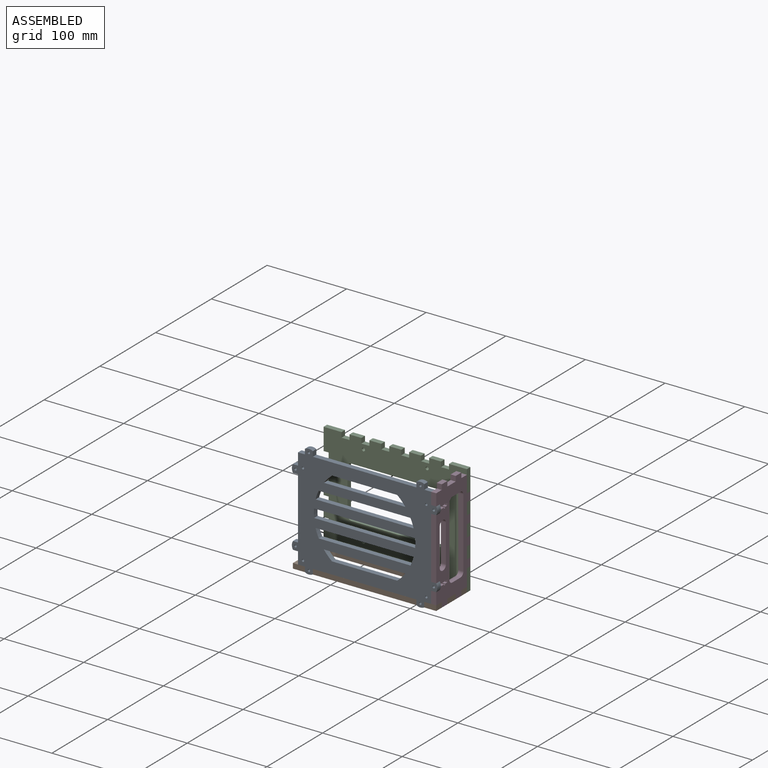
[diagram: assembled view]
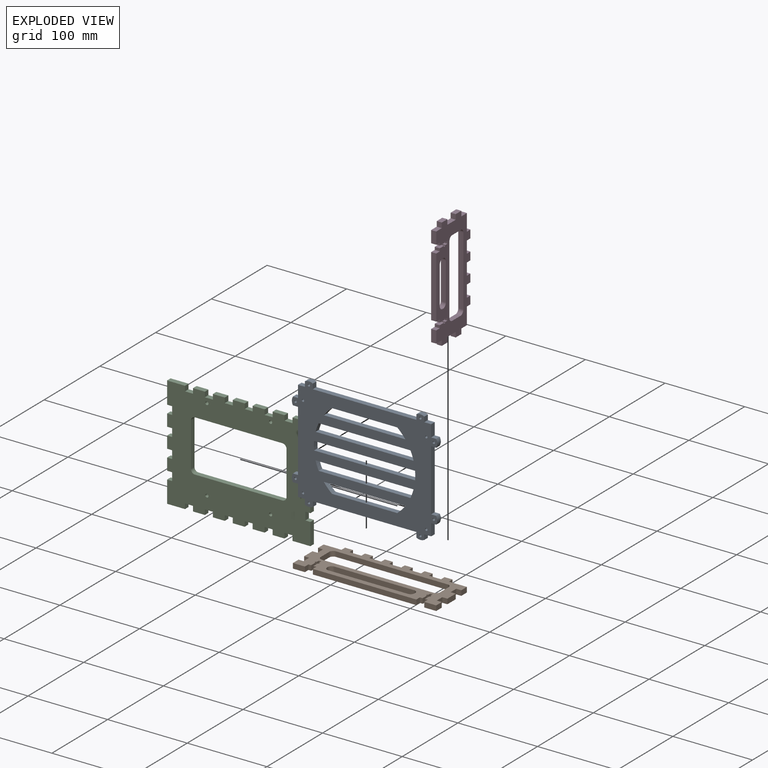
[diagram: exploded view]
GUIDED TOUR — MATED ASSEMBLY (Onshape document e93a26d0c6cd02507e0e48b9, AutoMate assembly e93a26d0c6cd02507e0e48b9_cac56c39afc5d2b4a90f5d49_2659cc8e5002bebd67dfdee4_default)

This assembly has 4 components, labeled P0..P3 below (a component is one placed occurrence of a part; the same part can appear more than once), held together by 9 mates. A mate is a constraint between two components; its type names the relative motion it leaves free:
  PLANAR — leaves sliding in the plane through the listed point (normal = the listed direction) and rotation about that normal free.
Axis/direction vectors are unit vectors and 'through' points are millimeter coordinates, both in the assembly's world frame.

MATES
  1. PLANAR "Planar 2": P1 <-> P2, direction (0.000, 1.000, 0.000) through (20.25, 56.73, -75.75) mm
  2. PLANAR "Planar 5": P3 <-> P1, direction (0.000, 0.000, -1.000) through (28.33, 6.73, -72.58) mm
  3. PLANAR "Planar 8": P3 <-> P0, direction (0.000, 0.000, -1.000) through (28.33, 4.90, 39.72) mm
  4. PLANAR "Planar 3": P1 <-> P2, direction (1.000, 0.000, 0.000) through (9.00, 59.90, -75.75) mm
  5. PLANAR "Planar 9": P0 <-> P1, direction (1.000, 0.000, 0.000) through (16.50, 4.90, -75.75) mm
  6. PLANAR "Planar 7": P0 <-> P3, direction (0.000, 1.000, 0.000) through (25.15, 8.08, 29.72) mm
  7. PLANAR "Planar 1": P2 <-> P1, direction (0.000, 0.000, -1.000) through (-121.00, 59.90, -72.58) mm
  8. PLANAR "Planar 4": P3 <-> P2, direction (0.000, 1.000, 0.000) through (28.33, 56.73, -62.00) mm
  9. PLANAR "Planar 6": P1 <-> P3, direction (1.000, 0.000, 0.000) through (25.15, 16.73, -75.75) mm

ASSEMBLY ORDER
  1. P1 — the base component [order heuristic]
  2. P0 — core [order heuristic]
  3. P3 — core [order heuristic]
  4. P2 [order verified]
Order-tag legend:
  [order verified] — this step's position reverses a verified removal order: the component was checked to insert without passing through the ones already placed.
  [order heuristic] — the first 3 components form the assembly's core: parts whose collision-free extraction could not be verified, listed in mate-graph order.

Of the 4 components, 4 carry the full construction recipe — the FeatureScript program that regenerates the part's solid from scratch; the rest are supplied as boundary geometry only.
Each toured component is shown spotlighted twice — in the assembled view, then in the exploded view, where a leader line traces a displaced component back to its assembled socket (saturated green if recipe-attached, orange if geometry-only; every other component desaturated gray) — followed by its recipe or geometry summary and the mates that hold it.
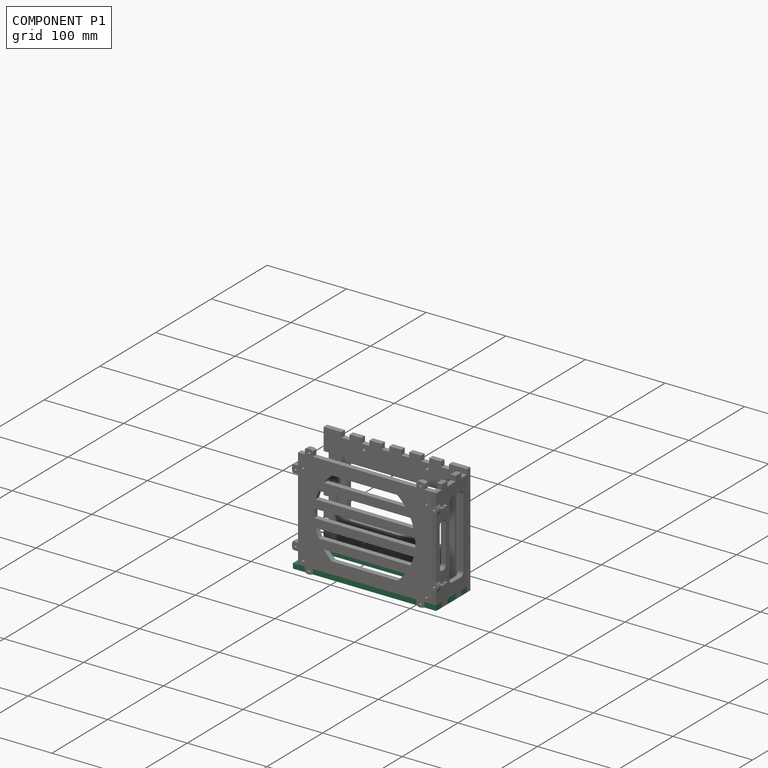
[diagram: component P1 — assembled]
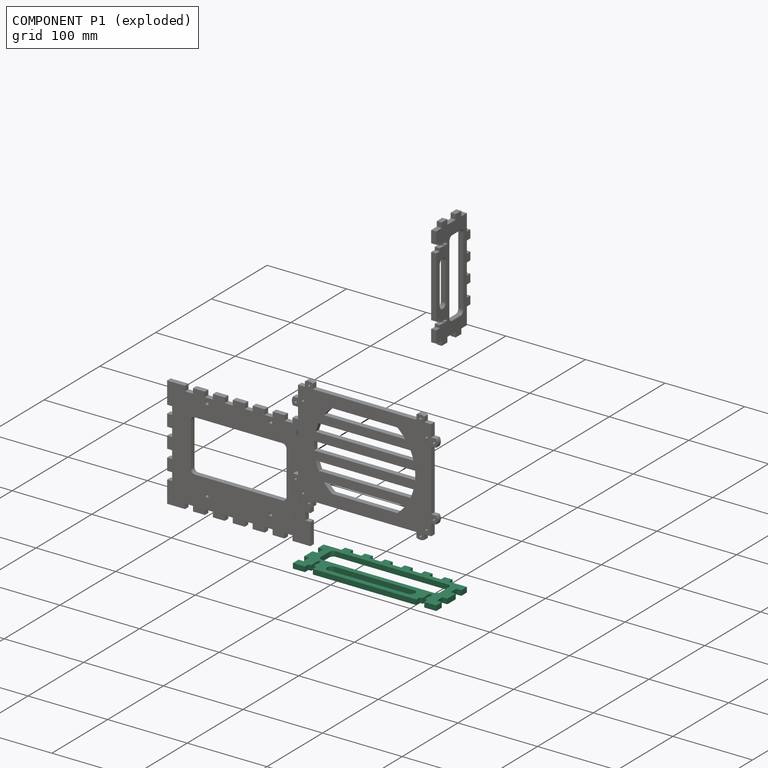
[diagram: component P1 — exploded]
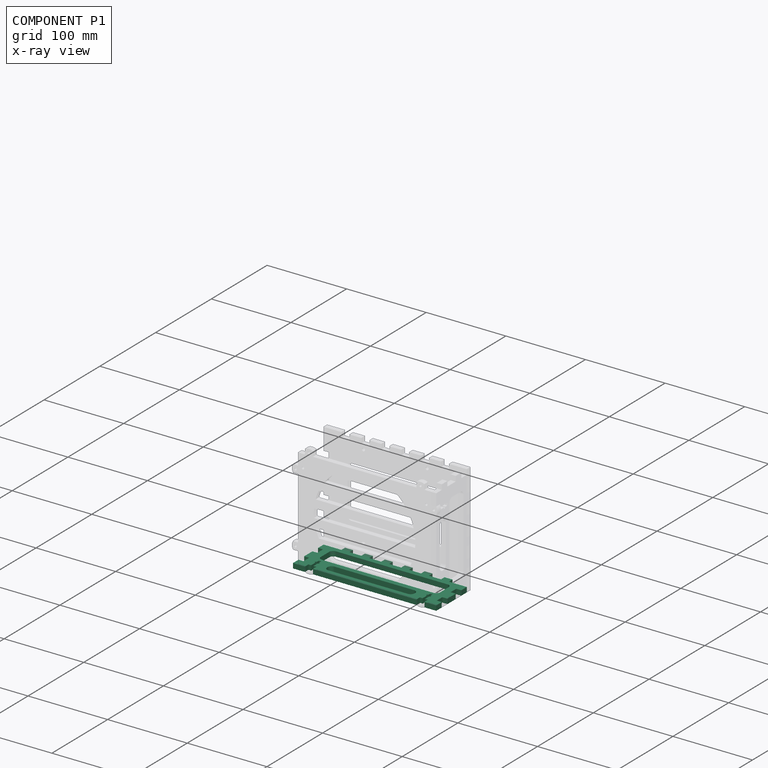
[diagram: component P1 — x-ray view]
COMPONENT P1 — recipe-attached (CADFS 00105248, mesh-verified: the recipe's output STEP matches this component's geometry to below the mesh-comparison resolution (tessellation chordal tolerance ~0.285 mm)).
Held by: PLANAR mate "Planar 2" to P2; PLANAR mate "Planar 5" to P3; PLANAR mate "Planar 3" to P2; PLANAR mate "Planar 9" to P0; PLANAR mate "Planar 1" to P2; PLANAR mate "Planar 6" to P3.
Construction recipe (FeatureScript — the CAD program that rebuilds this solid; sketch coordinates are in the units given by the * unit suffixes, e.g. mm):

FeatureScript 1511;
import(path : "onshape/std/geometry.fs", version : "1511.0");
import(path : "onshape/std/common.fs", version : "1511.0");
const mm = millimeter;
const VERTEX = EntityType.VERTEX;
const EDGE = EntityType.EDGE;
const FACE = EntityType.FACE;
const BODY = EntityType.BODY;
function v(x, y){return vector(x, y);}
function OD(order){return orderDisambiguation(order);}
function OSD(set){return originalSetDisambiguation(set);}
function TD(topology){return topologyDisambiguation(topology);}
function TDD(query){return trueDependencyDisambiguation(query);}
function sQuery(a, b, c) {return sketchEntityQuery(a, b, c);}

annotation { "Feature Type Name" : "Feature", "Feature Type Description" : "" }
export const myFeature = defineFeature(function(context is Context, id is Id, definition is map)
    precondition{}
    {
        {
            var Q0;
            Q0=qCreatedBy(makeId("Front.planeOp"),FACE);
            var sketch = newSketch(context, id + "F0", { "sketchPlane" : qUnion([Q0])});
            skLineSegment(sketch, "E0.bottom", {"start": v(0, 0) * mm, "end": v(15, 0) * mm});
            skLineSegment(sketch, "E0.left", {"start": v(0, 0) * mm, "end": v(0, 10) * mm});
            skLineSegment(sketch, "E0.right", {"start": v(180, 0) * mm, "end": v(180, 10) * mm});
            skLineSegment(sketch, "E1.top", {"start": v(22.5, 61.35) * mm, "end": v(32.5, 61.35) * mm});
            skLineSegment(sketch, "E1.left", {"start": v(22.5, 55) * mm, "end": v(22.5, 61.35) * mm});
            skLineSegment(sketch, "E1.right", {"start": v(32.5, 55) * mm, "end": v(32.5, 61.35) * mm});
            skLineSegment(sketch, "E2.1.0.0", {"start": v(57.5, 55) * mm, "end": v(57.5, 61.35) * mm});
            skLineSegment(sketch, "E2.1.0.1", {"start": v(47.5, 61.35) * mm, "end": v(57.5, 61.35) * mm});
            skLineSegment(sketch, "E2.1.0.3", {"start": v(47.5, 55) * mm, "end": v(47.5, 61.35) * mm});
            skLineSegment(sketch, "E2.2.0.0", {"start": v(82.5, 55) * mm, "end": v(82.5, 61.35) * mm});
            skLineSegment(sketch, "E2.2.0.1", {"start": v(72.5, 61.35) * mm, "end": v(82.5, 61.35) * mm});
            skLineSegment(sketch, "E2.2.0.3", {"start": v(72.5, 55) * mm, "end": v(72.5, 61.35) * mm});
            skLineSegment(sketch, "E2.3.0.0", {"start": v(107.5, 55) * mm, "end": v(107.5, 61.35) * mm});
            skLineSegment(sketch, "E2.3.0.1", {"start": v(97.5, 61.35) * mm, "end": v(107.5, 61.35) * mm});
            skLineSegment(sketch, "E2.3.0.3", {"start": v(97.5, 55) * mm, "end": v(97.5, 61.35) * mm});
            skLineSegment(sketch, "E2.4.0.0", {"start": v(132.5, 55) * mm, "end": v(132.5, 61.35) * mm});
            skLineSegment(sketch, "E2.4.0.1", {"start": v(122.5, 61.35) * mm, "end": v(132.5, 61.35) * mm});
            skLineSegment(sketch, "E2.4.0.3", {"start": v(122.5, 55) * mm, "end": v(122.5, 61.35) * mm});
            skLineSegment(sketch, "E2.5.0.0", {"start": v(157.5, 55) * mm, "end": v(157.5, 61.35) * mm});
            skLineSegment(sketch, "E2.5.0.1", {"start": v(147.5, 61.35) * mm, "end": v(157.5, 61.35) * mm});
            skLineSegment(sketch, "E2.5.0.3", {"start": v(147.5, 55) * mm, "end": v(147.5, 61.35) * mm});
            skLineSegment(sketch, "E2.direction1", {"start": v(22.5, 55) * mm, "end": v(47.5, 55) * mm, "construction": true});
            skLineSegment(sketch, "E3.trimOffspring", {"start": v(57.5, 55) * mm, "end": v(72.5, 55) * mm});
            skLineSegment(sketch, "E4.trimOffspring", {"start": v(82.5, 55) * mm, "end": v(97.5, 55) * mm});
            skLineSegment(sketch, "E5.trimOffspring", {"start": v(107.5, 55) * mm, "end": v(122.5, 55) * mm});
            skLineSegment(sketch, "E6.trimOffspring", {"start": v(157.5, 55) * mm, "end": v(180, 55) * mm});
            skLineSegment(sketch, "E7.trimOffspring", {"start": v(132.5, 55) * mm, "end": v(147.5, 55) * mm});
            skLineSegment(sketch, "E8", {"start": v(0, 55) * mm, "end": v(22.5, 55) * mm});
            skLineSegment(sketch, "E9", {"start": v(32.5, 55) * mm, "end": v(47.5, 55) * mm});
            skLineSegment(sketch, "E10.trimOffspring", {"start": v(25, 0) * mm, "end": v(155, 0) * mm});
            skLineSegment(sketch, "E11.trimOffspring", {"start": v(165, 0) * mm, "end": v(180, 0) * mm});
            skLineSegment(sketch, "E12.bottom", {"start": v(0, 45) * mm, "end": v(6.35, 45) * mm});
            skLineSegment(sketch, "E12.top", {"start": v(0, 35) * mm, "end": v(6.35, 35) * mm});
            skLineSegment(sketch, "E12.right", {"start": v(6.35, 45) * mm, "end": v(6.35, 35) * mm});
            skLineSegment(sketch, "E13.bottom", {"start": v(0, 20) * mm, "end": v(6.35, 20) * mm});
            skLineSegment(sketch, "E13.top", {"start": v(0, 10) * mm, "end": v(6.35, 10) * mm});
            skLineSegment(sketch, "E13.right", {"start": v(6.35, 20) * mm, "end": v(6.35, 10) * mm});
            skLineSegment(sketch, "E14.trimOffspring", {"start": v(0, 45) * mm, "end": v(0, 55) * mm});
            skLineSegment(sketch, "E15.trimOffspring", {"start": v(0, 20) * mm, "end": v(0, 35) * mm});
            skLineSegment(sketch, "E16.bottom", {"start": v(180, 45) * mm, "end": v(173.65, 45) * mm});
            skLineSegment(sketch, "E16.top", {"start": v(180, 35) * mm, "end": v(173.65, 35) * mm});
            skLineSegment(sketch, "E16.right", {"start": v(173.65, 45) * mm, "end": v(173.65, 35) * mm});
            skLineSegment(sketch, "E17.bottom", {"start": v(180, 20) * mm, "end": v(173.65, 20) * mm});
            skLineSegment(sketch, "E17.top", {"start": v(180, 10) * mm, "end": v(173.65, 10) * mm});
            skLineSegment(sketch, "E17.right", {"start": v(173.65, 20) * mm, "end": v(173.65, 10) * mm});
            skLineSegment(sketch, "E18.trimOffspring", {"start": v(180, 45) * mm, "end": v(180, 55) * mm});
            skLineSegment(sketch, "E19.trimOffspring", {"start": v(180, 20) * mm, "end": v(180, 35) * mm});
            skLineSegment(sketch, "E20.MirrorCS", {"start": v(21.5, 6.35) * mm, "end": v(21.5, 14) * mm});
            skLineSegment(sketch, "E21.MirrorCS", {"start": v(18.5, 6.35) * mm, "end": v(18.5, 14) * mm});
            skLineSegment(sketch, "E22.MirrorCS", {"start": v(18.5, 20) * mm, "end": v(21.5, 20) * mm});
            skLineSegment(sketch, "E23.bottom", {"start": v(17.3, 16.27) * mm, "end": v(18.5, 16.27) * mm});
            skLineSegment(sketch, "E23.top", {"start": v(17.3, 14) * mm, "end": v(18.5, 14) * mm});
            skLineSegment(sketch, "E23.left", {"start": v(17.3, 16.27) * mm, "end": v(17.3, 14) * mm});
            skLineSegment(sketch, "E23.right", {"start": v(22.7, 16.27) * mm, "end": v(22.7, 14) * mm});
            skLineSegment(sketch, "E24.trimOffspring", {"start": v(21.5, 16.27) * mm, "end": v(21.5, 20) * mm});
            skLineSegment(sketch, "E25.trimOffspring", {"start": v(18.5, 16.27) * mm, "end": v(18.5, 20) * mm});
            skLineSegment(sketch, "E26.trimOffspring", {"start": v(21.5, 16.27) * mm, "end": v(22.7, 16.27) * mm});
            skLineSegment(sketch, "E27.trimOffspring", {"start": v(21.5, 14) * mm, "end": v(22.7, 14) * mm});
            skLineSegment(sketch, "E28.top", {"start": v(25, 6.35) * mm, "end": v(21.5, 6.35) * mm});
            skLineSegment(sketch, "E28.left", {"start": v(25, 0) * mm, "end": v(25, 6.35) * mm});
            skLineSegment(sketch, "E29.top", {"start": v(18.5, 6.35) * mm, "end": v(15, 6.35) * mm});
            skLineSegment(sketch, "E29.right", {"start": v(15, 0) * mm, "end": v(15, 6.35) * mm});
            skPoint(sketch, "E30.orphan", {"position": v(21.5, 0) * mm});
            skPoint(sketch, "E31.orphan", {"position": v(18.5, 0) * mm});
            skLineSegment(sketch, "E32", {"start": v(90, 55) * mm, "end": v(90, 0) * mm, "construction": true});
            skLineSegment(sketch, "E33.MirrorCS", {"start": v(161.5, 20) * mm, "end": v(158.5, 20) * mm});
            skLineSegment(sketch, "E34.MirrorCS", {"start": v(162.7, 14) * mm, "end": v(161.5, 14) * mm});
            skLineSegment(sketch, "E35.MirrorCS", {"start": v(162.7, 16.27) * mm, "end": v(161.5, 16.27) * mm});
            skLineSegment(sketch, "E36.MirrorCS", {"start": v(158.5, 16.27) * mm, "end": v(158.5, 20) * mm});
            skLineSegment(sketch, "E37.MirrorCS", {"start": v(158.5, 6.35) * mm, "end": v(158.5, 14) * mm});
            skLineSegment(sketch, "E38.MirrorCS", {"start": v(161.5, 16.27) * mm, "end": v(161.5, 20) * mm});
            skLineSegment(sketch, "E39.MirrorCS", {"start": v(161.5, 6.35) * mm, "end": v(161.5, 14) * mm});
            skLineSegment(sketch, "E40.MirrorCS", {"start": v(161.5, 6.35) * mm, "end": v(165, 6.35) * mm});
            skLineSegment(sketch, "E41.MirrorCS", {"start": v(158.5, 16.27) * mm, "end": v(157.3, 16.27) * mm});
            skLineSegment(sketch, "E42.MirrorCS", {"start": v(157.3, 16.27) * mm, "end": v(157.3, 14) * mm});
            skLineSegment(sketch, "E43.MirrorCS", {"start": v(155, 6.35) * mm, "end": v(158.5, 6.35) * mm});
            skLineSegment(sketch, "E44.MirrorCS", {"start": v(155, 0) * mm, "end": v(155, 6.35) * mm});
            skLineSegment(sketch, "E45.MirrorCS", {"start": v(165, 0) * mm, "end": v(165, 6.35) * mm});
            skLineSegment(sketch, "E46.MirrorCS", {"start": v(162.7, 16.27) * mm, "end": v(162.7, 14) * mm});
            skLineSegment(sketch, "E47.MirrorCS", {"start": v(158.5, 14) * mm, "end": v(157.3, 14) * mm});
            skLineSegment(sketch, "E48.bottom", {"start": v(20, 48.65) * mm, "end": v(160, 48.65) * mm});
            skLineSegment(sketch, "E48.top", {"start": v(20, 23.65) * mm, "end": v(160, 23.65) * mm});
            skLineSegment(sketch, "E48.left", {"start": v(15, 43.65) * mm, "end": v(15, 28.65) * mm});
            skLineSegment(sketch, "E48.right", {"start": v(165, 43.65) * mm, "end": v(165, 28.65) * mm});
            skLineSegment(sketch, "E49.bottom", {"start": v(40, 17.3) * mm, "end": v(140, 17.3) * mm});
            skLineSegment(sketch, "E49.top", {"start": v(40, 6.35) * mm, "end": v(140, 6.35) * mm});
            skLineSegment(sketch, "E49.left", {"start": v(35, 12.3) * mm, "end": v(35, 11.35) * mm});
            skLineSegment(sketch, "E49.right", {"start": v(145, 12.3) * mm, "end": v(145, 11.35) * mm});
            skPoint(sketch, "E50.visualSharp", {"position": v(15, 48.65) * mm});
            skArc(sketch, "E50.filletArc", {"start": v(20, 48.65) * mm, "mid": v(16.46, 47.19) * mm, "end": v(15, 43.65) * mm});
            skPoint(sketch, "E51.visualSharp", {"position": v(165, 48.65) * mm});
            skArc(sketch, "E51.filletArc", {"start": v(165, 43.65) * mm, "mid": v(163.54, 47.19) * mm, "end": v(160, 48.65) * mm});
            skPoint(sketch, "E52.visualSharp", {"position": v(15, 23.65) * mm});
            skArc(sketch, "E52.filletArc", {"start": v(15, 28.65) * mm, "mid": v(16.46, 25.11) * mm, "end": v(20, 23.65) * mm});
            skPoint(sketch, "E53.visualSharp", {"position": v(165, 23.65) * mm});
            skArc(sketch, "E53.filletArc", {"start": v(160, 23.65) * mm, "mid": v(163.54, 25.11) * mm, "end": v(165, 28.65) * mm});
            skPoint(sketch, "E54.visualSharp", {"position": v(35, 17.3) * mm});
            skArc(sketch, "E54.filletArc", {"start": v(40, 17.3) * mm, "mid": v(36.46, 15.84) * mm, "end": v(35, 12.3) * mm});
            skPoint(sketch, "E55.visualSharp", {"position": v(35, 6.35) * mm});
            skArc(sketch, "E55.filletArc", {"start": v(35, 11.35) * mm, "mid": v(36.46, 7.81) * mm, "end": v(40, 6.35) * mm});
            skPoint(sketch, "E56.visualSharp", {"position": v(145, 6.35) * mm});
            skArc(sketch, "E56.filletArc", {"start": v(140, 6.35) * mm, "mid": v(143.54, 7.81) * mm, "end": v(145, 11.35) * mm});
            skPoint(sketch, "E57.visualSharp", {"position": v(145, 17.3) * mm});
            skArc(sketch, "E57.filletArc", {"start": v(145, 12.3) * mm, "mid": v(143.54, 15.84) * mm, "end": v(140, 17.3) * mm});
            skSolve(sketch);
        }
        {
            var Q0;
            Q0 = qSketchRegion(id + "F0", true);
            extrude(context, id + "F1", {"entities" : qUnion([Q0]), "depth" : 6.35 * mm});
        }
    });
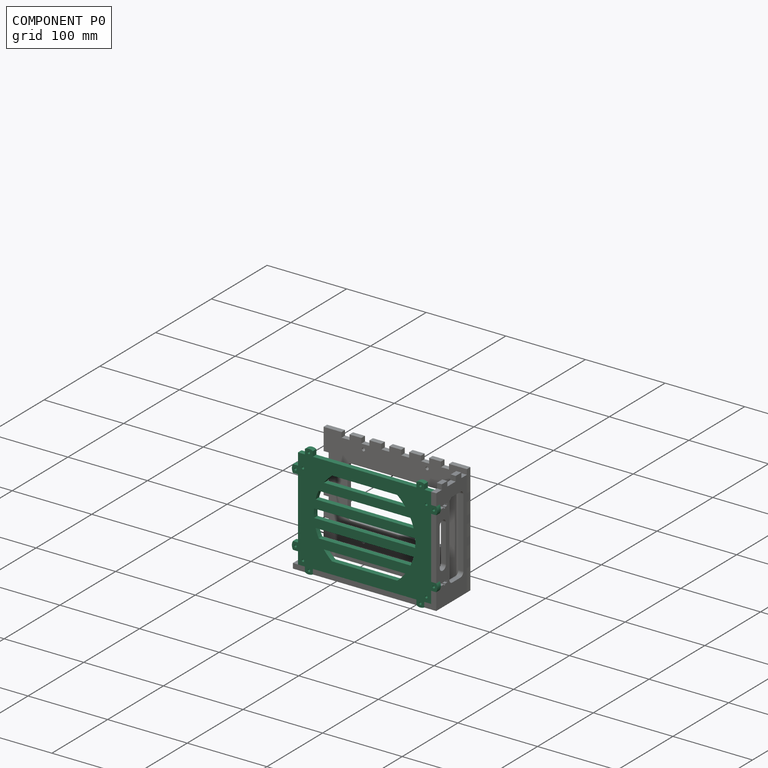
[diagram: component P0 — assembled]
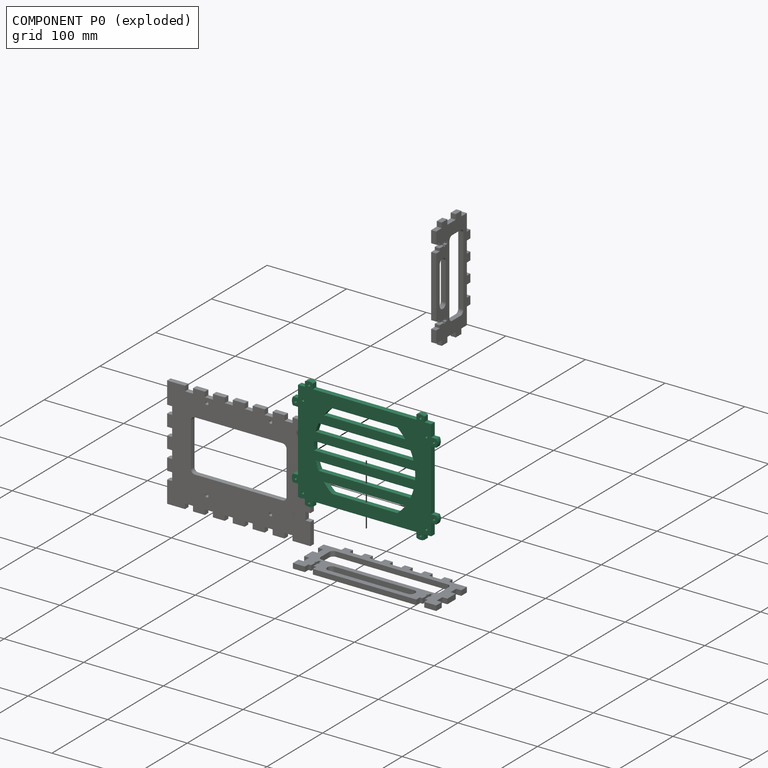
[diagram: component P0 — exploded]
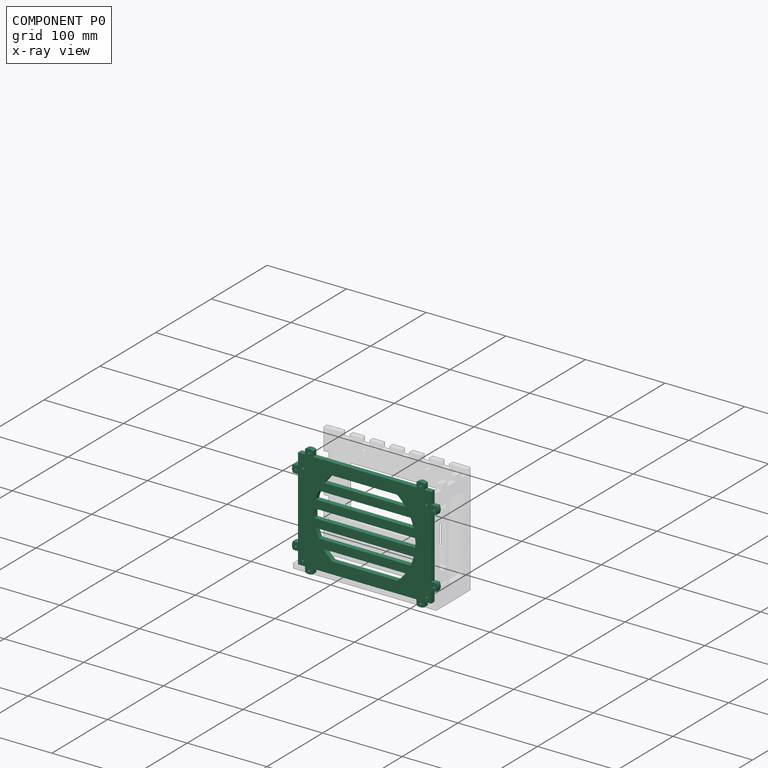
[diagram: component P0 — x-ray view]
COMPONENT P0 — recipe-attached (CADFS 00105250, mesh-verified: the recipe's output STEP matches this component's geometry to below the mesh-comparison resolution (tessellation chordal tolerance ~0.348 mm)).
Held by: PLANAR mate "Planar 8" to P3; PLANAR mate "Planar 9" to P1; PLANAR mate "Planar 7" to P3.
Construction recipe (FeatureScript — the CAD program that rebuilds this solid; sketch coordinates are in the units given by the * unit suffixes, e.g. mm):

FeatureScript 1511;
import(path : "onshape/std/geometry.fs", version : "1511.0");
import(path : "onshape/std/common.fs", version : "1511.0");
const mm = millimeter;
const VERTEX = EntityType.VERTEX;
const EDGE = EntityType.EDGE;
const FACE = EntityType.FACE;
const BODY = EntityType.BODY;
function v(x, y){return vector(x, y);}
function OD(order){return orderDisambiguation(order);}
function OSD(set){return originalSetDisambiguation(set);}
function TD(topology){return topologyDisambiguation(topology);}
function TDD(query){return trueDependencyDisambiguation(query);}
function sQuery(a, b, c) {return sketchEntityQuery(a, b, c);}

annotation { "Feature Type Name" : "Feature", "Feature Type Description" : "" }
export const myFeature = defineFeature(function(context is Context, id is Id, definition is map)
    precondition{}
    {
        {
            var Q0;
            Q0=qCreatedBy(makeId("Front.planeOp"),FACE);
            var sketch = newSketch(context, id + "F0", { "sketchPlane" : qUnion([Q0])});
            skLineSegment(sketch, "E0.bottom", {"start": v(0, 0) * mm, "end": v(8.65, 0) * mm});
            skLineSegment(sketch, "E0.top", {"start": v(0, 127.3) * mm, "end": v(8.65, 127.3) * mm});
            skLineSegment(sketch, "E0.left", {"start": v(0, 0) * mm, "end": v(0, 15) * mm});
            skLineSegment(sketch, "E0.right", {"start": v(167.3, 0) * mm, "end": v(167.3, 15) * mm});
            skLineSegment(sketch, "E1.trimOffspring", {"start": v(0, 112.3) * mm, "end": v(0, 127.3) * mm});
            skLineSegment(sketch, "E2.trimOffspring", {"start": v(0, 25) * mm, "end": v(0, 102.3) * mm});
            skLineSegment(sketch, "E3.trimOffspring", {"start": v(18.65, 127.3) * mm, "end": v(148.65, 127.3) * mm});
            skLineSegment(sketch, "E4.trimOffspring", {"start": v(158.65, 127.3) * mm, "end": v(167.3, 127.3) * mm});
            skLineSegment(sketch, "E5", {"start": v(83.65, 127.3) * mm, "end": v(83.65, 0) * mm, "construction": true});
            skLineSegment(sketch, "E6.MirrorCS", {"start": v(167.3, 25) * mm, "end": v(167.3, 102.3) * mm});
            skLineSegment(sketch, "E7.trimOffspring", {"start": v(167.3, 112.3) * mm, "end": v(167.3, 127.3) * mm});
            skLineSegment(sketch, "E8", {"start": v(0, 63.65) * mm, "end": v(167.3, 63.65) * mm, "construction": true});
            skLineSegment(sketch, "E9.MirrorCS", {"start": v(18.65, 0) * mm, "end": v(148.65, 0) * mm});
            skLineSegment(sketch, "E10.trimOffspring", {"start": v(158.65, 0) * mm, "end": v(167.3, 0) * mm});
            skLineSegment(sketch, "E11", {"start": v(42.6, 112.3) * mm, "end": v(124.7, 112.3) * mm});
            skLineSegment(sketch, "E12", {"start": v(147.3, 112.3) * mm, "end": v(147.3, 69.03) * mm, "construction": true});
            skLineSegment(sketch, "E13.0.1.0", {"start": v(32.47, 101.5) * mm, "end": v(134.83, 101.5) * mm});
            skLineSegment(sketch, "E13.0.2.0", {"start": v(26.03, 90.69) * mm, "end": v(141.27, 90.69) * mm});
            skLineSegment(sketch, "E13.0.2.2", {"start": v(145.2, 47.42) * mm, "end": v(22.1, 47.42) * mm});
            skLineSegment(sketch, "E13.0.3.0", {"start": v(22.1, 79.88) * mm, "end": v(145.2, 79.88) * mm});
            skLineSegment(sketch, "E13.0.3.2", {"start": v(141.27, 36.61) * mm, "end": v(26.03, 36.61) * mm});
            skLineSegment(sketch, "E13.0.4.0", {"start": v(20, 69.07) * mm, "end": v(147.07, 69.07) * mm});
            skLineSegment(sketch, "E13.0.4.2", {"start": v(134.83, 25.8) * mm, "end": v(32.47, 25.8) * mm});
            skLineSegment(sketch, "E13.direction1", {"start": v(20.23, 69.03) * mm, "end": v(45, 69.03) * mm, "construction": true});
            skLineSegment(sketch, "E13.direction2", {"start": v(20, 69.03) * mm, "end": v(20, 58.23) * mm, "construction": true});
            skLineSegment(sketch, "E14", {"start": v(66.95, 127.3) * mm, "end": v(66.95, 112.3) * mm, "construction": true});
            skLineSegment(sketch, "E15.0.0.5", {"start": v(20.23, 58.27) * mm, "end": v(147.07, 58.27) * mm});
            skLineSegment(sketch, "E15.6.0.5", {"start": v(124.7, 15) * mm, "end": v(42.6, 15) * mm});
            skLineSegment(sketch, "E16", {"start": v(70.23, 15) * mm, "end": v(70.23, 0) * mm, "construction": true});
            skLineSegment(sketch, "E17.MirrorCS", {"start": v(8.65, 127.3) * mm, "end": v(8.65, 133.65) * mm});
            skLineSegment(sketch, "E18.MirrorCS", {"start": v(18.65, 127.3) * mm, "end": v(18.65, 133.65) * mm});
            skLineSegment(sketch, "E19.MirrorCS", {"start": v(158.65, 0) * mm, "end": v(158.65, -6.29) * mm});
            skArc(sketch, "E20", {"start": v(42.6, 112.3) * mm, "mid": v(37.22, 107.2) * mm, "end": v(32.47, 101.5) * mm});
            skPoint(sketch, "E21.orphan", {"position": v(20, 101.5) * mm});
            skPoint(sketch, "E22.orphan", {"position": v(20, 25.8) * mm});
            skPoint(sketch, "E23.orphan", {"position": v(20, 58.27) * mm});
            skPoint(sketch, "E24.orphan", {"position": v(20, 15) * mm});
            skArc(sketch, "E25.trimOffspring", {"start": v(124.7, 15) * mm, "mid": v(130.08, 20.1) * mm, "end": v(134.83, 25.8) * mm});
            skPoint(sketch, "E26.orphan", {"position": v(147.3, 58.27) * mm});
            skPoint(sketch, "E27.orphan", {"position": v(147.3, 69.07) * mm});
            skPoint(sketch, "E28.orphan", {"position": v(147.3, 90.69) * mm});
            skPoint(sketch, "E29.orphan", {"position": v(147.3, 58.23) * mm});
            skPoint(sketch, "E30.orphan", {"position": v(147.3, 101.5) * mm});
            skPoint(sketch, "E31.orphan", {"position": v(147.3, 47.42) * mm});
            skPoint(sketch, "E32.orphan", {"position": v(20, 90.69) * mm});
            skPoint(sketch, "E33.orphan", {"position": v(20, 47.42) * mm});
            skArc(sketch, "E34.trimOffspring", {"start": v(26.03, 90.69) * mm, "mid": v(23.82, 85.37) * mm, "end": v(22.1, 79.88) * mm});
            skArc(sketch, "E35.trimOffspring", {"start": v(20.23, 69.07) * mm, "mid": v(20, 63.67) * mm, "end": v(20.23, 58.27) * mm});
            skArc(sketch, "E36.trimOffspring", {"start": v(22.1, 47.42) * mm, "mid": v(23.82, 41.93) * mm, "end": v(26.03, 36.61) * mm});
            skArc(sketch, "E37.trimOffspring", {"start": v(141.27, 36.61) * mm, "mid": v(143.48, 41.93) * mm, "end": v(145.2, 47.42) * mm});
            skArc(sketch, "E38.trimOffspring", {"start": v(147.07, 58.27) * mm, "mid": v(147.3, 63.67) * mm, "end": v(147.07, 69.07) * mm});
            skArc(sketch, "E39", {"start": v(18.65, 133.65) * mm, "mid": v(13.65, 134.99) * mm, "end": v(8.65, 133.65) * mm});
            skLineSegment(sketch, "E40", {"start": v(8.65, 130.47) * mm, "end": v(18.65, 130.47) * mm, "construction": true});
            skCircle(sketch, "E41", {"center": v(13.65, 130.47) * mm, "radius": 1.5 * mm});
            skLineSegment(sketch, "E42.MirrorCS", {"start": v(158.65, 127.3) * mm, "end": v(158.65, 133.65) * mm});
            skLineSegment(sketch, "E43.MirrorCS", {"start": v(148.65, 127.3) * mm, "end": v(148.65, 133.65) * mm});
            skCircle(sketch, "E44.MirrorC", {"center": v(153.65, 130.47) * mm, "radius": 1.5 * mm});
            skArc(sketch, "E45.MirrorCS", {"start": v(148.65, 133.65) * mm, "mid": v(153.65, 134.99) * mm, "end": v(158.65, 133.65) * mm});
            skArc(sketch, "E46.MirrorCS", {"start": v(148.65, -6.35) * mm, "mid": v(153.65, -7.69) * mm, "end": v(158.65, -6.35) * mm});
            skLineSegment(sketch, "E47.MirrorCS", {"start": v(148.65, 0) * mm, "end": v(148.65, -6.35) * mm});
            skCircle(sketch, "E48.MirrorC", {"center": v(153.65, -3.18) * mm, "radius": 1.5 * mm});
            skLineSegment(sketch, "E49.MirrorCS", {"start": v(158.65, 0) * mm, "end": v(158.65, -6.35) * mm});
            skCircle(sketch, "E50.MirrorC", {"center": v(13.65, -3.18) * mm, "radius": 1.5 * mm});
            skLineSegment(sketch, "E51.MirrorCS", {"start": v(8.65, 0) * mm, "end": v(8.65, -6.35) * mm});
            skLineSegment(sketch, "E52.MirrorCS", {"start": v(18.65, 0) * mm, "end": v(18.65, -6.35) * mm});
            skArc(sketch, "E53.MirrorCS", {"start": v(18.65, -6.35) * mm, "mid": v(13.65, -7.69) * mm, "end": v(8.65, -6.35) * mm});
            skLineSegment(sketch, "E54", {"start": v(0, 112.3) * mm, "end": v(-6.35, 112.3) * mm});
            skLineSegment(sketch, "E55", {"start": v(0, 102.3) * mm, "end": v(-6.35, 102.3) * mm});
            skArc(sketch, "E56", {"start": v(-6.35, 112.3) * mm, "mid": v(-7.69, 107.3) * mm, "end": v(-6.35, 102.3) * mm});
            skLineSegment(sketch, "E57", {"start": v(-3.18, 112.3) * mm, "end": v(-3.18, 102.3) * mm, "construction": true});
            skCircle(sketch, "E58", {"center": v(-3.18, 107.3) * mm, "radius": 1.5 * mm});
            skArc(sketch, "E59.MirrorCS", {"start": v(-6.35, 15) * mm, "mid": v(-7.69, 20) * mm, "end": v(-6.35, 25) * mm});
            skLineSegment(sketch, "E60.MirrorCS", {"start": v(0, 15) * mm, "end": v(-6.35, 15) * mm});
            skLineSegment(sketch, "E61.MirrorCS", {"start": v(0, 25) * mm, "end": v(-6.35, 25) * mm});
            skCircle(sketch, "E62.MirrorC", {"center": v(-3.17, 20) * mm, "radius": 1.5 * mm});
            skLineSegment(sketch, "E63.MirrorCS", {"start": v(167.3, 112.3) * mm, "end": v(173.65, 112.3) * mm});
            skLineSegment(sketch, "E64.MirrorCS", {"start": v(167.3, 102.3) * mm, "end": v(173.65, 102.3) * mm});
            skCircle(sketch, "E65.MirrorC", {"center": v(170.48, 107.3) * mm, "radius": 1.5 * mm});
            skCircle(sketch, "E66.MirrorC", {"center": v(170.48, 20) * mm, "radius": 1.5 * mm});
            skArc(sketch, "E67.MirrorCS", {"start": v(173.65, 15) * mm, "mid": v(174.99, 20) * mm, "end": v(173.65, 25) * mm});
            skLineSegment(sketch, "E68.MirrorCS", {"start": v(167.3, 15) * mm, "end": v(173.65, 15) * mm});
            skLineSegment(sketch, "E69.MirrorCS", {"start": v(167.3, 25) * mm, "end": v(173.65, 25) * mm});
            skArc(sketch, "E70.MirrorCS", {"start": v(173.65, 112.3) * mm, "mid": v(174.99, 107.3) * mm, "end": v(173.65, 102.3) * mm});
            skPoint(sketch, "E71.orphan", {"position": v(147.3, 36.61) * mm});
            skPoint(sketch, "E72.orphan", {"position": v(20, 36.61) * mm});
            skArc(sketch, "E73.trimOffspring", {"start": v(134.83, 101.5) * mm, "mid": v(130.08, 107.2) * mm, "end": v(124.7, 112.3) * mm});
            skArc(sketch, "E74.trimOffspring", {"start": v(145.2, 79.88) * mm, "mid": v(143.48, 85.37) * mm, "end": v(141.27, 90.69) * mm});
            skArc(sketch, "E75.trimOffspring", {"start": v(32.47, 25.8) * mm, "mid": v(37.22, 20.1) * mm, "end": v(42.6, 15) * mm});
            skArc(sketch, "E76.trimOffspring", {"start": v(20.23, 69.07) * mm, "mid": v(20, 64.57) * mm, "end": v(20.1, 60.06) * mm});
            skPoint(sketch, "E77.orphan", {"position": v(20, 79.88) * mm});
            skPoint(sketch, "E78.orphan", {"position": v(147.3, 79.88) * mm});
            skLineSegment(sketch, "E79.0", {"start": v(18.65, 127.06) * mm, "end": v(148.65, 127.06) * mm});
            skLineSegment(sketch, "E80", {"start": v(147.07, 58.27) * mm, "end": v(145.2, 47.42) * mm, "construction": true});
            skLineSegment(sketch, "E81", {"start": v(147.3, 69.07) * mm, "end": v(145.2, 79.88) * mm, "construction": true});
            skCircle(sketch, "E82", {"center": v(6.15, 121.15) * mm, "radius": 1.5 * mm});
            skCircle(sketch, "E83", {"center": v(161.15, 121.15) * mm, "radius": 1.5 * mm});
            skCircle(sketch, "E84", {"center": v(6.15, 16.15) * mm, "radius": 1.5 * mm});
            skCircle(sketch, "E85", {"center": v(161.15, 16.15) * mm, "radius": 1.5 * mm});
            skLineSegment(sketch, "E86", {"start": v(83.65, 121.15) * mm, "end": v(161.15, 121.15) * mm, "construction": true});
            skLineSegment(sketch, "E87", {"start": v(6.15, 121.15) * mm, "end": v(83.65, 121.15) * mm, "construction": true});
            skSolve(sketch);
        }
        {
            var Q0;
            Q0=makeQuery(id+"F0.imprint","IMPRINT",FACE,{"disambiguationData":[TD([[makeQuery(id+"F0.imprint","IMPRINT",EDGE,{"derivedFrom":sQuery(id+"F0.wireOp",EDGE,"E0.bottom")}),1.0]])]});
            extrude(context, id + "F1", {"entities" : qUnion([Q0]), "depth" : 6.35 * mm});
        }
    });
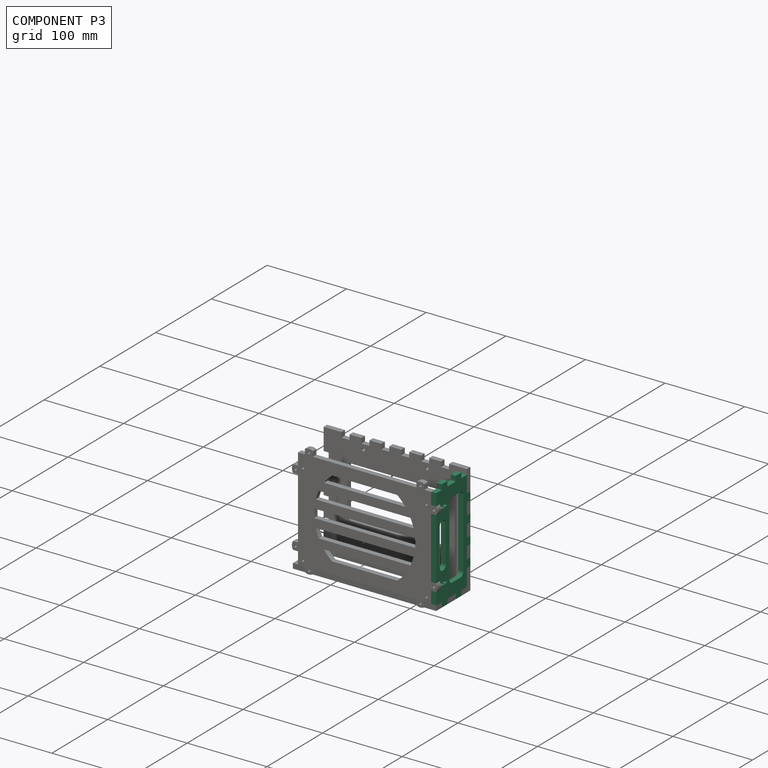
[diagram: component P3 — assembled]
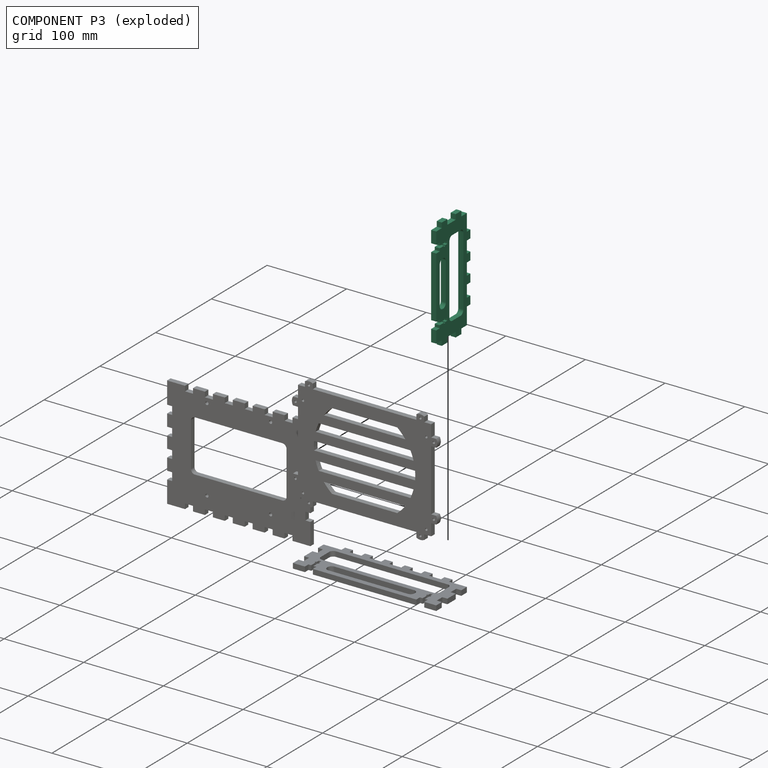
[diagram: component P3 — exploded]
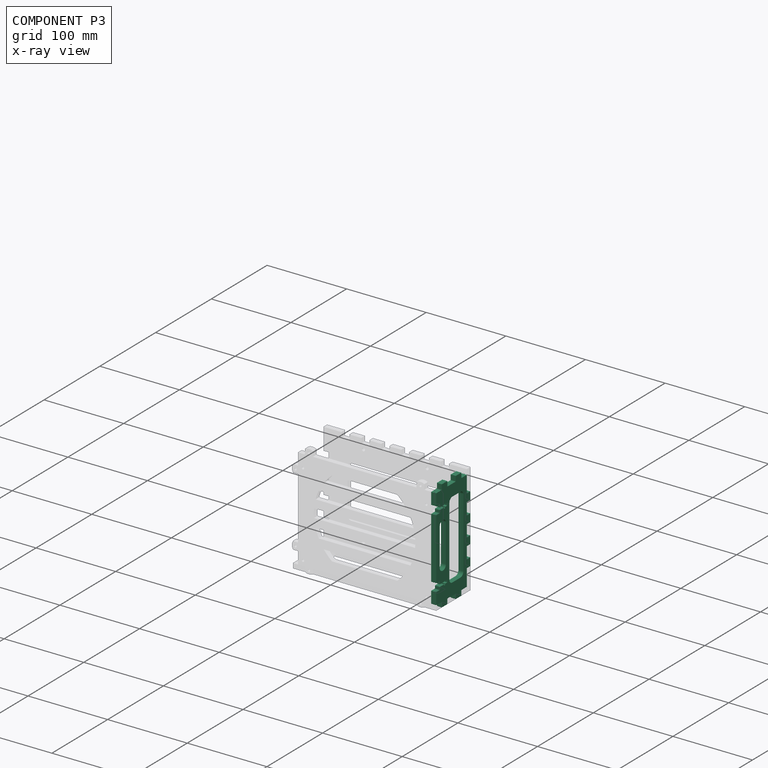
[diagram: component P3 — x-ray view]
COMPONENT P3 — recipe-attached (CADFS 00105249, mesh-verified: the recipe's output STEP matches this component's geometry to below the mesh-comparison resolution (tessellation chordal tolerance ~0.229 mm)).
Held by: PLANAR mate "Planar 5" to P1; PLANAR mate "Planar 8" to P0; PLANAR mate "Planar 7" to P0; PLANAR mate "Planar 4" to P2; PLANAR mate "Planar 6" to P1.
Construction recipe (FeatureScript — the CAD program that rebuilds this solid; sketch coordinates are in the units given by the * unit suffixes, e.g. mm):

FeatureScript 1511;
import(path : "onshape/std/geometry.fs", version : "1511.0");
import(path : "onshape/std/common.fs", version : "1511.0");
const mm = millimeter;
const VERTEX = EntityType.VERTEX;
const EDGE = EntityType.EDGE;
const FACE = EntityType.FACE;
const BODY = EntityType.BODY;
function v(x, y){return vector(x, y);}
function OD(order){return orderDisambiguation(order);}
function OSD(set){return originalSetDisambiguation(set);}
function TD(topology){return topologyDisambiguation(topology);}
function TDD(query){return trueDependencyDisambiguation(query);}
function sQuery(a, b, c) {return sketchEntityQuery(a, b, c);}

annotation { "Feature Type Name" : "Feature", "Feature Type Description" : "" }
export const myFeature = defineFeature(function(context is Context, id is Id, definition is map)
    precondition{}
    {
        {
            var Q0;
            Q0=qCreatedBy(makeId("Front.planeOp"),FACE);
            var sketch = newSketch(context, id + "F0", { "sketchPlane" : qUnion([Q0])});
            skLineSegment(sketch, "E0.bottom", {"start": v(0, 0) * mm, "end": v(15, 0) * mm});
            skLineSegment(sketch, "E0.top", {"start": v(0, 55) * mm, "end": v(21.15, 55) * mm});
            skLineSegment(sketch, "E0.left", {"start": v(0, 0) * mm, "end": v(0, 10) * mm});
            skLineSegment(sketch, "E0.right", {"start": v(127.3, 0) * mm, "end": v(127.3, 10) * mm});
            skLineSegment(sketch, "E1.top", {"start": v(21.15, 61.35) * mm, "end": v(31.15, 61.35) * mm});
            skLineSegment(sketch, "E1.left", {"start": v(21.15, 55) * mm, "end": v(21.15, 61.35) * mm});
            skLineSegment(sketch, "E1.right", {"start": v(31.15, 55) * mm, "end": v(31.15, 61.35) * mm});
            skLineSegment(sketch, "E2.trimOffspring", {"start": v(31.15, 55) * mm, "end": v(46.15, 55) * mm});
            skLineSegment(sketch, "E3.1.0.0", {"start": v(46.15, 61.35) * mm, "end": v(56.15, 61.35) * mm});
            skLineSegment(sketch, "E3.1.0.1", {"start": v(46.15, 55) * mm, "end": v(46.15, 61.35) * mm});
            skLineSegment(sketch, "E3.1.0.2", {"start": v(56.15, 55) * mm, "end": v(56.15, 61.35) * mm});
            skLineSegment(sketch, "E3.2.0.0", {"start": v(71.15, 61.35) * mm, "end": v(81.15, 61.35) * mm});
            skLineSegment(sketch, "E3.2.0.1", {"start": v(71.15, 55) * mm, "end": v(71.15, 61.35) * mm});
            skLineSegment(sketch, "E3.2.0.2", {"start": v(81.15, 55) * mm, "end": v(81.15, 61.35) * mm});
            skLineSegment(sketch, "E3.3.0.0", {"start": v(96.15, 61.35) * mm, "end": v(106.15, 61.35) * mm});
            skLineSegment(sketch, "E3.3.0.1", {"start": v(96.15, 55) * mm, "end": v(96.15, 61.35) * mm});
            skLineSegment(sketch, "E3.3.0.2", {"start": v(106.15, 55) * mm, "end": v(106.15, 61.35) * mm});
            skLineSegment(sketch, "E3.direction1", {"start": v(21.15, 55) * mm, "end": v(46.15, 55) * mm, "construction": true});
            skLineSegment(sketch, "E4.trimOffspring", {"start": v(56.15, 55) * mm, "end": v(71.15, 55) * mm});
            skLineSegment(sketch, "E5.trimOffspring", {"start": v(81.15, 55) * mm, "end": v(96.15, 55) * mm});
            skLineSegment(sketch, "E6.trimOffspring", {"start": v(106.15, 55) * mm, "end": v(127.3, 55) * mm});
            skLineSegment(sketch, "E7.bottom", {"start": v(0, 45) * mm, "end": v(-6.35, 45) * mm});
            skLineSegment(sketch, "E7.top", {"start": v(0, 35) * mm, "end": v(-6.35, 35) * mm});
            skLineSegment(sketch, "E7.right", {"start": v(-6.35, 45) * mm, "end": v(-6.35, 35) * mm});
            skLineSegment(sketch, "E8.bottom", {"start": v(0, 20) * mm, "end": v(-6.35, 20) * mm});
            skLineSegment(sketch, "E8.top", {"start": v(0, 10) * mm, "end": v(-6.35, 10) * mm});
            skLineSegment(sketch, "E8.right", {"start": v(-6.35, 20) * mm, "end": v(-6.35, 10) * mm});
            skLineSegment(sketch, "E9.bottom", {"start": v(127.3, 45) * mm, "end": v(133.65, 45) * mm});
            skLineSegment(sketch, "E9.top", {"start": v(127.3, 35) * mm, "end": v(133.65, 35) * mm});
            skLineSegment(sketch, "E9.right", {"start": v(133.65, 45) * mm, "end": v(133.65, 35) * mm});
            skLineSegment(sketch, "E10.bottom", {"start": v(127.3, 20) * mm, "end": v(133.65, 20) * mm});
            skLineSegment(sketch, "E10.top", {"start": v(127.3, 10) * mm, "end": v(133.65, 10) * mm});
            skLineSegment(sketch, "E10.right", {"start": v(133.65, 20) * mm, "end": v(133.65, 10) * mm});
            skLineSegment(sketch, "E11.trimOffspring", {"start": v(0, 45) * mm, "end": v(0, 55) * mm});
            skLineSegment(sketch, "E12.trimOffspring", {"start": v(0, 20) * mm, "end": v(0, 35) * mm});
            skLineSegment(sketch, "E13.trimOffspring", {"start": v(25, 0) * mm, "end": v(102.3, 0) * mm});
            skLineSegment(sketch, "E14.trimOffspring", {"start": v(112.3, 0) * mm, "end": v(127.3, 0) * mm});
            skLineSegment(sketch, "E15.trimOffspring", {"start": v(127.3, 20) * mm, "end": v(127.3, 35) * mm});
            skLineSegment(sketch, "E16.trimOffspring", {"start": v(127.3, 45) * mm, "end": v(127.3, 55) * mm});
            skLineSegment(sketch, "E17.MirrorCS", {"start": v(21.5, 6.35) * mm, "end": v(21.5, 14) * mm});
            skLineSegment(sketch, "E18.MirrorCS", {"start": v(18.5, 20) * mm, "end": v(21.5, 20) * mm});
            skLineSegment(sketch, "E19.MirrorCS", {"start": v(18.5, 6.35) * mm, "end": v(18.5, 14) * mm});
            skLineSegment(sketch, "E20.bottom", {"start": v(17.3, 16.27) * mm, "end": v(18.5, 16.27) * mm});
            skLineSegment(sketch, "E20.top", {"start": v(17.3, 14) * mm, "end": v(18.5, 14) * mm});
            skLineSegment(sketch, "E20.left", {"start": v(17.3, 16.27) * mm, "end": v(17.3, 14) * mm});
            skLineSegment(sketch, "E20.right", {"start": v(22.7, 16.27) * mm, "end": v(22.7, 14) * mm});
            skLineSegment(sketch, "E21.trimOffspring", {"start": v(21.5, 16.27) * mm, "end": v(22.7, 16.27) * mm});
            skLineSegment(sketch, "E22.trimOffspring", {"start": v(21.5, 14) * mm, "end": v(22.7, 14) * mm});
            skLineSegment(sketch, "E23.trimOffspring", {"start": v(18.5, 16.27) * mm, "end": v(18.5, 20) * mm});
            skLineSegment(sketch, "E24.trimOffspring", {"start": v(21.5, 16.27) * mm, "end": v(21.5, 20) * mm});
            skLineSegment(sketch, "E25.top", {"start": v(21.5, 6.35) * mm, "end": v(25, 6.35) * mm});
            skLineSegment(sketch, "E25.right", {"start": v(25, 0) * mm, "end": v(25, 6.35) * mm});
            skPoint(sketch, "E26.oppositeSnap0", {"position": v(23.25, 6.35) * mm});
            skLineSegment(sketch, "E26.top", {"start": v(18.5, 6.35) * mm, "end": v(15, 6.35) * mm});
            skLineSegment(sketch, "E26.right", {"start": v(15, 0) * mm, "end": v(15, 6.35) * mm});
            skPoint(sketch, "E27.orphan", {"position": v(21.5, 0) * mm});
            skPoint(sketch, "E26.bottom.start.orphan", {"position": v(18.5, 0) * mm});
            skLineSegment(sketch, "E28", {"start": v(63.65, 55) * mm, "end": v(63.65, 0) * mm, "construction": true});
            skPoint(sketch, "E28.endSnap0", {"position": v(63.65, 0) * mm});
            skLineSegment(sketch, "E29.MirrorCS", {"start": v(105.8, 6.35) * mm, "end": v(102.3, 6.35) * mm});
            skLineSegment(sketch, "E30.MirrorCS", {"start": v(104.6, 16.27) * mm, "end": v(104.6, 14) * mm});
            skLineSegment(sketch, "E31.MirrorCS", {"start": v(105.8, 16.27) * mm, "end": v(105.8, 20) * mm});
            skLineSegment(sketch, "E32.MirrorCS", {"start": v(110, 14) * mm, "end": v(108.8, 14) * mm});
            skLineSegment(sketch, "E33.MirrorCS", {"start": v(112.3, 0) * mm, "end": v(112.3, 6.35) * mm});
            skLineSegment(sketch, "E34.MirrorCS", {"start": v(105.8, 6.35) * mm, "end": v(105.8, 14) * mm});
            skLineSegment(sketch, "E35.MirrorCS", {"start": v(110, 16.27) * mm, "end": v(108.8, 16.27) * mm});
            skLineSegment(sketch, "E36.MirrorCS", {"start": v(105.8, 16.27) * mm, "end": v(104.6, 16.27) * mm});
            skLineSegment(sketch, "E37.MirrorCS", {"start": v(108.8, 20) * mm, "end": v(105.8, 20) * mm});
            skLineSegment(sketch, "E38.MirrorCS", {"start": v(110, 16.27) * mm, "end": v(110, 14) * mm});
            skLineSegment(sketch, "E39.MirrorCS", {"start": v(108.8, 16.27) * mm, "end": v(108.8, 20) * mm});
            skLineSegment(sketch, "E40.MirrorCS", {"start": v(102.3, 0) * mm, "end": v(102.3, 6.35) * mm});
            skPoint(sketch, "E41.MirrorP", {"position": v(104.05, 6.35) * mm});
            skLineSegment(sketch, "E42.MirrorCS", {"start": v(105.8, 14) * mm, "end": v(104.6, 14) * mm});
            skLineSegment(sketch, "E43.MirrorCS", {"start": v(108.8, 6.35) * mm, "end": v(108.8, 14) * mm});
            skLineSegment(sketch, "E44.MirrorCS", {"start": v(108.8, 6.35) * mm, "end": v(112.3, 6.35) * mm});
            skLineSegment(sketch, "E45.bottom", {"start": v(20, 48.65) * mm, "end": v(107.3, 48.65) * mm});
            skLineSegment(sketch, "E45.top", {"start": v(20, 23.65) * mm, "end": v(107.3, 23.65) * mm});
            skLineSegment(sketch, "E45.left", {"start": v(15, 43.65) * mm, "end": v(15, 28.65) * mm});
            skLineSegment(sketch, "E45.right", {"start": v(112.3, 43.65) * mm, "end": v(112.3, 28.65) * mm});
            skLineSegment(sketch, "E46.bottom", {"start": v(40, 17.3) * mm, "end": v(87.3, 17.3) * mm});
            skLineSegment(sketch, "E46.top", {"start": v(40, 6.35) * mm, "end": v(87.3, 6.35) * mm});
            skLineSegment(sketch, "E46.left", {"start": v(35, 12.3) * mm, "end": v(35, 11.35) * mm});
            skLineSegment(sketch, "E46.right", {"start": v(92.3, 12.3) * mm, "end": v(92.3, 11.35) * mm});
            skPoint(sketch, "E47.visualSharp", {"position": v(15, 48.65) * mm});
            skArc(sketch, "E47.filletArc", {"start": v(20, 48.65) * mm, "mid": v(16.46, 47.19) * mm, "end": v(15, 43.65) * mm});
            skPoint(sketch, "E48.visualSharp", {"position": v(15, 23.65) * mm});
            skArc(sketch, "E48.filletArc", {"start": v(15, 28.65) * mm, "mid": v(16.46, 25.11) * mm, "end": v(20, 23.65) * mm});
            skPoint(sketch, "E49.visualSharp", {"position": v(112.3, 23.65) * mm});
            skArc(sketch, "E49.filletArc", {"start": v(107.3, 23.65) * mm, "mid": v(110.84, 25.11) * mm, "end": v(112.3, 28.65) * mm});
            skPoint(sketch, "E50.visualSharp", {"position": v(112.3, 48.65) * mm});
            skArc(sketch, "E50.filletArc", {"start": v(112.3, 43.65) * mm, "mid": v(110.84, 47.19) * mm, "end": v(107.3, 48.65) * mm});
            skPoint(sketch, "E51.visualSharp", {"position": v(35, 17.3) * mm});
            skArc(sketch, "E51.filletArc", {"start": v(40, 17.3) * mm, "mid": v(36.46, 15.84) * mm, "end": v(35, 12.3) * mm});
            skPoint(sketch, "E52.visualSharp", {"position": v(35, 6.35) * mm});
            skArc(sketch, "E52.filletArc", {"start": v(35, 11.35) * mm, "mid": v(36.46, 7.81) * mm, "end": v(40, 6.35) * mm});
            skPoint(sketch, "E53.visualSharp", {"position": v(92.3, 6.35) * mm});
            skArc(sketch, "E53.filletArc", {"start": v(87.3, 6.35) * mm, "mid": v(90.84, 7.81) * mm, "end": v(92.3, 11.35) * mm});
            skPoint(sketch, "E54.visualSharp", {"position": v(92.3, 17.3) * mm});
            skArc(sketch, "E54.filletArc", {"start": v(92.3, 12.3) * mm, "mid": v(90.84, 15.84) * mm, "end": v(87.3, 17.3) * mm});
            skSolve(sketch);
        }
        {
            var Q0;
            Q0 = qSketchRegion(id + "F0", true);
            extrude(context, id + "F1", {"entities" : qUnion([Q0]), "depth" : 6.35 * mm});
        }
    });
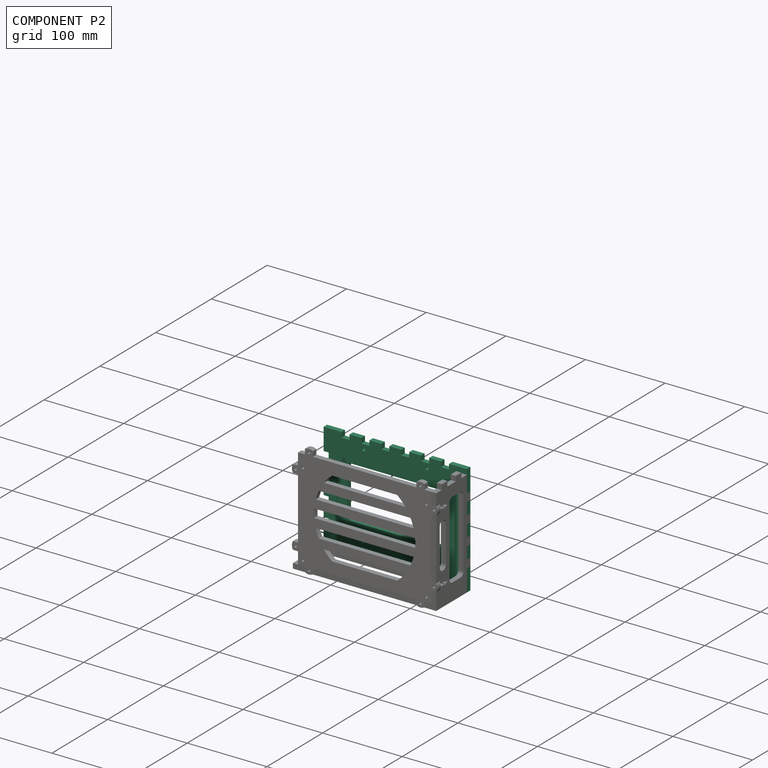
[diagram: component P2 — assembled]
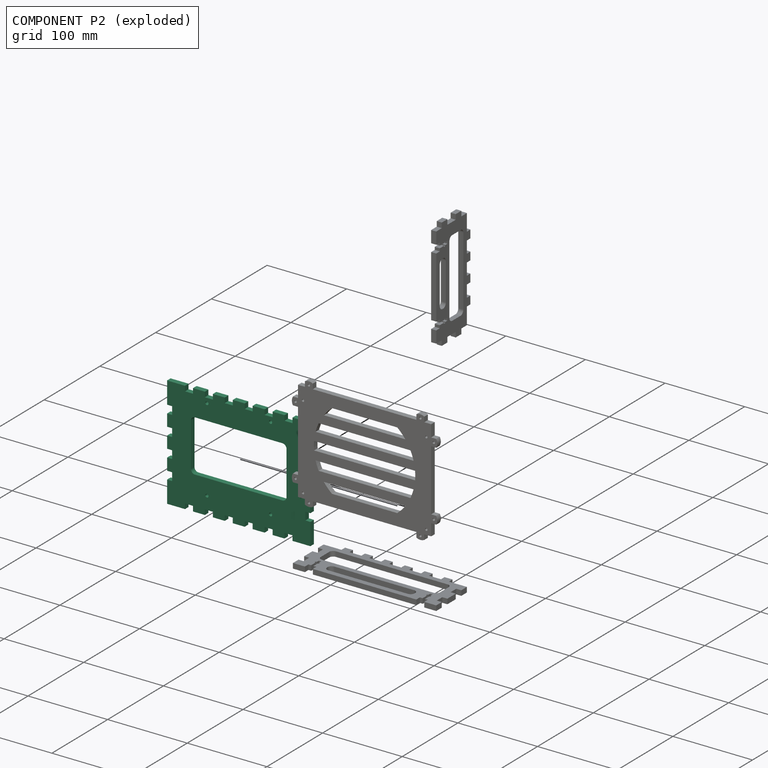
[diagram: component P2 — exploded]
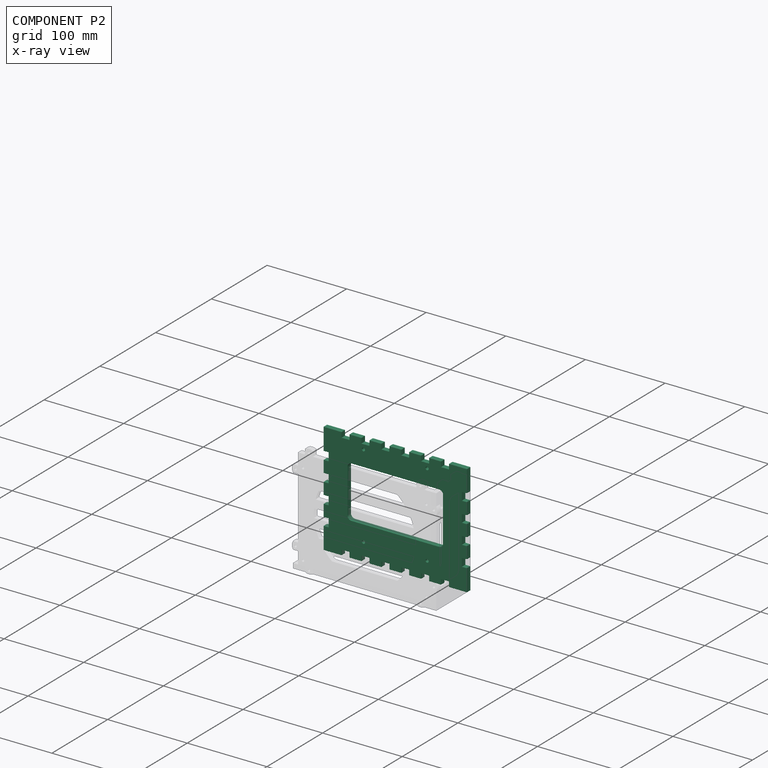
[diagram: component P2 — x-ray view]
COMPONENT P2 — recipe-attached (CADFS 00105247, mesh-verified: the recipe's output STEP matches this component's geometry to below the mesh-comparison resolution (tessellation chordal tolerance ~0.342 mm)).
Held by: PLANAR mate "Planar 2" to P1; PLANAR mate "Planar 3" to P1; PLANAR mate "Planar 1" to P1; PLANAR mate "Planar 4" to P3.
Construction recipe (FeatureScript — the CAD program that rebuilds this solid; sketch coordinates are in the units given by the * unit suffixes, e.g. mm):

FeatureScript 1511;
import(path : "onshape/std/geometry.fs", version : "1511.0");
import(path : "onshape/std/common.fs", version : "1511.0");
const mm = millimeter;
const VERTEX = EntityType.VERTEX;
const EDGE = EntityType.EDGE;
const FACE = EntityType.FACE;
const BODY = EntityType.BODY;
function v(x, y){return vector(x, y);}
function OD(order){return orderDisambiguation(order);}
function OSD(set){return originalSetDisambiguation(set);}
function TD(topology){return topologyDisambiguation(topology);}
function TDD(query){return trueDependencyDisambiguation(query);}
function sQuery(a, b, c) {return sketchEntityQuery(a, b, c);}

annotation { "Feature Type Name" : "Feature", "Feature Type Description" : "" }
export const myFeature = defineFeature(function(context is Context, id is Id, definition is map)
    precondition{}
    {
        {
            var Q0;
            Q0=qCreatedBy(makeId("Front.planeOp"),FACE);
            var sketch = newSketch(context, id + "F0", { "sketchPlane" : qUnion([Q0])});
            skLineSegment(sketch, "E0.bottom", {"start": v(180, 140) * mm, "end": v(157.5, 140) * mm});
            skLineSegment(sketch, "E0.top", {"start": v(180, 0) * mm, "end": v(157.5, 0) * mm});
            skLineSegment(sketch, "E0.left", {"start": v(180, 140) * mm, "end": v(180, 112.5) * mm});
            skLineSegment(sketch, "E0.right", {"start": v(0, 140) * mm, "end": v(0, 112.5) * mm});
            skLineSegment(sketch, "E1.top", {"start": v(22.5, 133.65) * mm, "end": v(32.5, 133.65) * mm});
            skLineSegment(sketch, "E1.left", {"start": v(22.5, 140) * mm, "end": v(22.5, 133.65) * mm});
            skLineSegment(sketch, "E1.right", {"start": v(32.5, 140) * mm, "end": v(32.5, 133.65) * mm});
            skLineSegment(sketch, "E2.trimOffspring", {"start": v(22.5, 140) * mm, "end": v(0, 140) * mm});
            skLineSegment(sketch, "E3.1.0.0", {"start": v(47.5, 133.65) * mm, "end": v(57.5, 133.65) * mm});
            skLineSegment(sketch, "E3.1.0.1", {"start": v(57.5, 140) * mm, "end": v(57.5, 133.65) * mm});
            skLineSegment(sketch, "E3.1.0.2", {"start": v(47.5, 140) * mm, "end": v(47.5, 133.65) * mm});
            skLineSegment(sketch, "E3.2.0.0", {"start": v(72.5, 133.65) * mm, "end": v(82.5, 133.65) * mm});
            skLineSegment(sketch, "E3.2.0.1", {"start": v(82.5, 140) * mm, "end": v(82.5, 133.65) * mm});
            skLineSegment(sketch, "E3.2.0.2", {"start": v(72.5, 140) * mm, "end": v(72.5, 133.65) * mm});
            skLineSegment(sketch, "E3.3.0.0", {"start": v(97.5, 133.65) * mm, "end": v(107.5, 133.65) * mm});
            skLineSegment(sketch, "E3.3.0.1", {"start": v(107.5, 140) * mm, "end": v(107.5, 133.65) * mm});
            skLineSegment(sketch, "E3.3.0.2", {"start": v(97.5, 140) * mm, "end": v(97.5, 133.65) * mm});
            skLineSegment(sketch, "E3.4.0.0", {"start": v(122.5, 133.65) * mm, "end": v(132.5, 133.65) * mm});
            skLineSegment(sketch, "E3.4.0.1", {"start": v(132.5, 140) * mm, "end": v(132.5, 133.65) * mm});
            skLineSegment(sketch, "E3.4.0.2", {"start": v(122.5, 140) * mm, "end": v(122.5, 133.65) * mm});
            skLineSegment(sketch, "E3.5.0.0", {"start": v(147.5, 133.65) * mm, "end": v(157.5, 133.65) * mm});
            skLineSegment(sketch, "E3.5.0.1", {"start": v(157.5, 140) * mm, "end": v(157.5, 133.65) * mm});
            skLineSegment(sketch, "E3.5.0.2", {"start": v(147.5, 140) * mm, "end": v(147.5, 133.65) * mm});
            skLineSegment(sketch, "E3.direction1", {"start": v(22.5, 133.65) * mm, "end": v(47.5, 133.65) * mm, "construction": true});
            skLineSegment(sketch, "E4.trimOffspring", {"start": v(47.5, 140) * mm, "end": v(32.5, 140) * mm});
            skLineSegment(sketch, "E5.trimOffspring", {"start": v(72.5, 140) * mm, "end": v(57.5, 140) * mm});
            skLineSegment(sketch, "E6.trimOffspring", {"start": v(97.5, 140) * mm, "end": v(82.5, 140) * mm});
            skLineSegment(sketch, "E7.trimOffspring", {"start": v(122.5, 140) * mm, "end": v(107.5, 140) * mm});
            skLineSegment(sketch, "E8.trimOffspring", {"start": v(147.5, 140) * mm, "end": v(132.5, 140) * mm});
            skLineSegment(sketch, "E9", {"start": v(0, 70) * mm, "end": v(180, 70) * mm, "construction": true});
            skLineSegment(sketch, "E10.MirrorCS", {"start": v(22.5, 6.35) * mm, "end": v(32.5, 6.35) * mm});
            skLineSegment(sketch, "E11.MirrorCS", {"start": v(157.5, 0) * mm, "end": v(157.5, 6.35) * mm});
            skLineSegment(sketch, "E12.MirrorCS", {"start": v(122.5, 6.35) * mm, "end": v(132.5, 6.35) * mm});
            skLineSegment(sketch, "E13.MirrorCS", {"start": v(97.5, 0) * mm, "end": v(82.5, 0) * mm});
            skLineSegment(sketch, "E14.MirrorCS", {"start": v(122.5, 0) * mm, "end": v(122.5, 6.35) * mm});
            skLineSegment(sketch, "E15.MirrorCS", {"start": v(72.5, 0) * mm, "end": v(72.5, 6.35) * mm});
            skLineSegment(sketch, "E16.MirrorCS", {"start": v(97.5, 6.35) * mm, "end": v(107.5, 6.35) * mm});
            skLineSegment(sketch, "E17.MirrorCS", {"start": v(107.5, 0) * mm, "end": v(107.5, 6.35) * mm});
            skLineSegment(sketch, "E18.MirrorCS", {"start": v(72.5, 0) * mm, "end": v(57.5, 0) * mm});
            skLineSegment(sketch, "E19.MirrorCS", {"start": v(147.5, 0) * mm, "end": v(147.5, 6.35) * mm});
            skLineSegment(sketch, "E20.MirrorCS", {"start": v(132.5, 0) * mm, "end": v(132.5, 6.35) * mm});
            skLineSegment(sketch, "E21.MirrorCS", {"start": v(22.5, 0) * mm, "end": v(22.5, 6.35) * mm});
            skLineSegment(sketch, "E22.MirrorCS", {"start": v(32.5, 0) * mm, "end": v(32.5, 6.35) * mm});
            skLineSegment(sketch, "E23.MirrorCS", {"start": v(72.5, 6.35) * mm, "end": v(82.5, 6.35) * mm});
            skLineSegment(sketch, "E24.MirrorCS", {"start": v(57.5, 0) * mm, "end": v(57.5, 6.35) * mm});
            skLineSegment(sketch, "E25.MirrorCS", {"start": v(82.5, 0) * mm, "end": v(82.5, 6.35) * mm});
            skLineSegment(sketch, "E26.MirrorCS", {"start": v(122.5, 0) * mm, "end": v(107.5, 0) * mm});
            skLineSegment(sketch, "E27.MirrorCS", {"start": v(22.5, 6.35) * mm, "end": v(47.5, 6.35) * mm, "construction": true});
            skLineSegment(sketch, "E28.MirrorCS", {"start": v(147.5, 6.35) * mm, "end": v(157.5, 6.35) * mm});
            skLineSegment(sketch, "E29.MirrorCS", {"start": v(147.5, 0) * mm, "end": v(132.5, 0) * mm});
            skLineSegment(sketch, "E30.MirrorCS", {"start": v(47.5, 6.35) * mm, "end": v(57.5, 6.35) * mm});
            skLineSegment(sketch, "E31.MirrorCS", {"start": v(47.5, 0) * mm, "end": v(32.5, 0) * mm});
            skLineSegment(sketch, "E32.MirrorCS", {"start": v(47.5, 0) * mm, "end": v(47.5, 6.35) * mm});
            skLineSegment(sketch, "E33.MirrorCS", {"start": v(97.5, 0) * mm, "end": v(97.5, 6.35) * mm});
            skLineSegment(sketch, "E34.trimOffspring", {"start": v(22.5, 0) * mm, "end": v(0, 0) * mm});
            skLineSegment(sketch, "E35.bottom", {"start": v(180, 112.5) * mm, "end": v(173.65, 112.5) * mm});
            skLineSegment(sketch, "E35.top", {"start": v(180, 102.5) * mm, "end": v(173.65, 102.5) * mm});
            skLineSegment(sketch, "E35.right", {"start": v(173.65, 112.5) * mm, "end": v(173.65, 102.5) * mm});
            skLineSegment(sketch, "E36.0.1.1", {"start": v(180, 87.5) * mm, "end": v(173.65, 87.5) * mm});
            skLineSegment(sketch, "E36.0.1.2", {"start": v(173.65, 87.5) * mm, "end": v(173.65, 77.5) * mm});
            skLineSegment(sketch, "E36.0.1.3", {"start": v(180, 77.5) * mm, "end": v(173.65, 77.5) * mm});
            skLineSegment(sketch, "E36.0.2.1", {"start": v(180, 62.5) * mm, "end": v(173.65, 62.5) * mm});
            skLineSegment(sketch, "E36.0.2.2", {"start": v(173.65, 62.5) * mm, "end": v(173.65, 52.5) * mm});
            skLineSegment(sketch, "E36.0.2.3", {"start": v(180, 52.5) * mm, "end": v(173.65, 52.5) * mm});
            skLineSegment(sketch, "E36.0.3.1", {"start": v(180, 37.5) * mm, "end": v(173.65, 37.5) * mm});
            skLineSegment(sketch, "E36.0.3.2", {"start": v(173.65, 37.5) * mm, "end": v(173.65, 27.5) * mm});
            skLineSegment(sketch, "E36.0.3.3", {"start": v(180, 27.5) * mm, "end": v(173.65, 27.5) * mm});
            skLineSegment(sketch, "E36.direction1", {"start": v(173.65, 102.5) * mm, "end": v(195, 102.5) * mm, "construction": true});
            skLineSegment(sketch, "E36.direction2", {"start": v(173.65, 102.5) * mm, "end": v(173.65, 77.5) * mm, "construction": true});
            skLineSegment(sketch, "E37.trimOffspring", {"start": v(180, 102.5) * mm, "end": v(180, 87.5) * mm});
            skLineSegment(sketch, "E38.trimOffspring", {"start": v(180, 52.5) * mm, "end": v(180, 37.5) * mm});
            skLineSegment(sketch, "E39.trimOffspring", {"start": v(180, 77.5) * mm, "end": v(180, 62.5) * mm});
            skLineSegment(sketch, "E40.trimOffspring", {"start": v(180, 27.5) * mm, "end": v(180, 0) * mm});
            skLineSegment(sketch, "E41", {"start": v(90, 140) * mm, "end": v(90, 0) * mm, "construction": true});
            skLineSegment(sketch, "E42.MirrorCS", {"start": v(0, 52.5) * mm, "end": v(6.35, 52.5) * mm});
            skLineSegment(sketch, "E43.MirrorCS", {"start": v(0, 102.5) * mm, "end": v(6.35, 102.5) * mm});
            skLineSegment(sketch, "E44.MirrorCS", {"start": v(0, 27.5) * mm, "end": v(6.35, 27.5) * mm});
            skLineSegment(sketch, "E45.MirrorCS", {"start": v(0, 112.5) * mm, "end": v(6.35, 112.5) * mm});
            skLineSegment(sketch, "E46.MirrorCS", {"start": v(0, 37.5) * mm, "end": v(6.35, 37.5) * mm});
            skLineSegment(sketch, "E47.MirrorCS", {"start": v(0, 77.5) * mm, "end": v(6.35, 77.5) * mm});
            skLineSegment(sketch, "E48.MirrorCS", {"start": v(0, 87.5) * mm, "end": v(6.35, 87.5) * mm});
            skLineSegment(sketch, "E49.MirrorCS", {"start": v(0, 62.5) * mm, "end": v(6.35, 62.5) * mm});
            skLineSegment(sketch, "E50.MirrorCS", {"start": v(6.35, 87.5) * mm, "end": v(6.35, 77.5) * mm});
            skLineSegment(sketch, "E51.MirrorCS", {"start": v(0, 77.5) * mm, "end": v(0, 62.5) * mm});
            skLineSegment(sketch, "E52.MirrorCS", {"start": v(6.35, 37.5) * mm, "end": v(6.35, 27.5) * mm});
            skLineSegment(sketch, "E53.MirrorCS", {"start": v(0, 52.5) * mm, "end": v(0, 37.5) * mm});
            skLineSegment(sketch, "E54.MirrorCS", {"start": v(6.35, 62.5) * mm, "end": v(6.35, 52.5) * mm});
            skLineSegment(sketch, "E55.MirrorCS", {"start": v(6.35, 112.5) * mm, "end": v(6.35, 102.5) * mm});
            skLineSegment(sketch, "E56.MirrorCS", {"start": v(0, 102.5) * mm, "end": v(0, 87.5) * mm});
            skLineSegment(sketch, "E57.MirrorCS", {"start": v(6.35, 102.5) * mm, "end": v(6.35, 77.5) * mm, "construction": true});
            skLineSegment(sketch, "E58.trimOffspring", {"start": v(0, 27.5) * mm, "end": v(0, 0) * mm});
            skPoint(sketch, "E59", {"position": v(130, 127.5) * mm});
            skPoint(sketch, "E60", {"position": v(130, 22.5) * mm});
            skPoint(sketch, "E61", {"position": v(50, 127.5) * mm});
            skPoint(sketch, "E62", {"position": v(50, 22.5) * mm});
            skLineSegment(sketch, "E63.bottom", {"start": v(35, 107.5) * mm, "end": v(145, 107.5) * mm});
            skLineSegment(sketch, "E63.top", {"start": v(35, 42.5) * mm, "end": v(145, 42.5) * mm});
            skLineSegment(sketch, "E63.left", {"start": v(30, 102.5) * mm, "end": v(30, 47.5) * mm});
            skLineSegment(sketch, "E63.right", {"start": v(150, 102.5) * mm, "end": v(150, 47.5) * mm});
            skPoint(sketch, "E64.visualSharp", {"position": v(30, 107.5) * mm});
            skArc(sketch, "E64.filletArc", {"start": v(35, 107.5) * mm, "mid": v(31.46, 106.04) * mm, "end": v(30, 102.5) * mm});
            skPoint(sketch, "E65.visualSharp", {"position": v(30, 42.5) * mm});
            skArc(sketch, "E65.filletArc", {"start": v(30, 47.5) * mm, "mid": v(31.46, 43.96) * mm, "end": v(35, 42.5) * mm});
            skPoint(sketch, "E66.visualSharp", {"position": v(150, 42.5) * mm});
            skArc(sketch, "E66.filletArc", {"start": v(145, 42.5) * mm, "mid": v(148.54, 43.96) * mm, "end": v(150, 47.5) * mm});
            skPoint(sketch, "E67.visualSharp", {"position": v(150, 107.5) * mm});
            skArc(sketch, "E67.filletArc", {"start": v(150, 102.5) * mm, "mid": v(148.54, 106.04) * mm, "end": v(145, 107.5) * mm});
            skCircle(sketch, "E68", {"center": v(50, 127.5) * mm, "radius": 1.5 * mm});
            skCircle(sketch, "E69.MirrorC", {"center": v(130, 127.5) * mm, "radius": 1.5 * mm});
            skCircle(sketch, "E70", {"center": v(50, 22.5) * mm, "radius": 1.5 * mm});
            skCircle(sketch, "E71", {"center": v(130, 22.5) * mm, "radius": 1.5 * mm});
            skSolve(sketch);
        }
        {
            var Q0;
            Q0=makeQuery(id+"F0.imprint","IMPRINT",FACE,{"disambiguationData":[TD([[makeQuery(id+"F0.imprint","IMPRINT",EDGE,{"derivedFrom":sQuery(id+"F0.wireOp",EDGE,"E0.bottom")}),1.0]])]});
            extrude(context, id + "F1", {"entities" : qUnion([Q0]), "depth" : 6.35 * mm});
        }
        {
            var Q0;
            Q0=sQuery(id+"F0.wireOp",VERTEX,"E61");
            var Q1;
            Q1=sQuery(id+"F0.wireOp",VERTEX,"E59");
            var Q2;
            Q2=sQuery(id+"F0.wireOp",VERTEX,"E60");
            var Q3;
            Q3=sQuery(id+"F0.wireOp",VERTEX,"E62");
            var Q4;
            Q4=makeQuery(id+"F1.opExtrude","SWEPT_BODY",BODY,{"disambiguationData":[OSD([sQuery(id+"F0.wireOp",EDGE,"E0.bottom"),sQuery(id+"F0.wireOp",EDGE,"E0.top"),sQuery(id+"F0.wireOp",EDGE,"E0.left"),sQuery(id+"F0.wireOp",EDGE,"E0.right"),sQuery(id+"F0.wireOp",EDGE,"E1.top"),sQuery(id+"F0.wireOp",EDGE,"E1.left"),sQuery(id+"F0.wireOp",EDGE,"E1.right"),sQuery(id+"F0.wireOp",EDGE,"E2.trimOffspring"),sQuery(id+"F0.wireOp",EDGE,"E3.1.0.0"),sQuery(id+"F0.wireOp",EDGE,"E3.1.0.1"),sQuery(id+"F0.wireOp",EDGE,"E3.1.0.2"),sQuery(id+"F0.wireOp",EDGE,"E3.2.0.0"),sQuery(id+"F0.wireOp",EDGE,"E3.2.0.1"),sQuery(id+"F0.wireOp",EDGE,"E3.2.0.2"),sQuery(id+"F0.wireOp",EDGE,"E3.3.0.0"),sQuery(id+"F0.wireOp",EDGE,"E3.3.0.1"),sQuery(id+"F0.wireOp",EDGE,"E3.3.0.2"),sQuery(id+"F0.wireOp",EDGE,"E3.4.0.0"),sQuery(id+"F0.wireOp",EDGE,"E3.4.0.1"),sQuery(id+"F0.wireOp",EDGE,"E3.4.0.2"),sQuery(id+"F0.wireOp",EDGE,"E3.5.0.0"),sQuery(id+"F0.wireOp",EDGE,"E3.5.0.1"),sQuery(id+"F0.wireOp",EDGE,"E3.5.0.2"),sQuery(id+"F0.wireOp",EDGE,"E4.trimOffspring"),sQuery(id+"F0.wireOp",EDGE,"E5.trimOffspring"),sQuery(id+"F0.wireOp",EDGE,"E6.trimOffspring"),sQuery(id+"F0.wireOp",EDGE,"E7.trimOffspring"),sQuery(id+"F0.wireOp",EDGE,"E8.trimOffspring"),sQuery(id+"F0.wireOp",EDGE,"E10.MirrorCS"),sQuery(id+"F0.wireOp",EDGE,"E11.MirrorCS"),sQuery(id+"F0.wireOp",EDGE,"E12.MirrorCS"),sQuery(id+"F0.wireOp",EDGE,"E14.MirrorCS"),sQuery(id+"F0.wireOp",EDGE,"E15.MirrorCS"),sQuery(id+"F0.wireOp",EDGE,"E16.MirrorCS"),sQuery(id+"F0.wireOp",EDGE,"E17.MirrorCS"),sQuery(id+"F0.wireOp",EDGE,"E19.MirrorCS"),sQuery(id+"F0.wireOp",EDGE,"E20.MirrorCS"),sQuery(id+"F0.wireOp",EDGE,"E21.MirrorCS"),sQuery(id+"F0.wireOp",EDGE,"E22.MirrorCS"),sQuery(id+"F0.wireOp",EDGE,"E23.MirrorCS"),sQuery(id+"F0.wireOp",EDGE,"E24.MirrorCS"),sQuery(id+"F0.wireOp",EDGE,"E25.MirrorCS"),sQuery(id+"F0.wireOp",EDGE,"E28.MirrorCS"),sQuery(id+"F0.wireOp",EDGE,"E30.MirrorCS"),sQuery(id+"F0.wireOp",EDGE,"E32.MirrorCS"),sQuery(id+"F0.wireOp",EDGE,"E33.MirrorCS"),sQuery(id+"F0.wireOp",EDGE,"E34.trimOffspring"),sQuery(id+"F0.wireOp",EDGE,"E31.MirrorCS"),sQuery(id+"F0.wireOp",EDGE,"E18.MirrorCS"),sQuery(id+"F0.wireOp",EDGE,"E13.MirrorCS"),sQuery(id+"F0.wireOp",EDGE,"E26.MirrorCS"),sQuery(id+"F0.wireOp",EDGE,"E29.MirrorCS"),sQuery(id+"F0.wireOp",EDGE,"E35.bottom"),sQuery(id+"F0.wireOp",EDGE,"E35.top"),sQuery(id+"F0.wireOp",EDGE,"E35.right"),sQuery(id+"F0.wireOp",EDGE,"E36.0.1.1"),sQuery(id+"F0.wireOp",EDGE,"E36.0.1.2"),sQuery(id+"F0.wireOp",EDGE,"E36.0.1.3"),sQuery(id+"F0.wireOp",EDGE,"E36.0.2.1"),sQuery(id+"F0.wireOp",EDGE,"E36.0.2.2"),sQuery(id+"F0.wireOp",EDGE,"E36.0.2.3"),sQuery(id+"F0.wireOp",EDGE,"E36.0.3.1"),sQuery(id+"F0.wireOp",EDGE,"E36.0.3.2"),sQuery(id+"F0.wireOp",EDGE,"E36.0.3.3"),sQuery(id+"F0.wireOp",EDGE,"E37.trimOffspring"),sQuery(id+"F0.wireOp",EDGE,"E38.trimOffspring"),sQuery(id+"F0.wireOp",EDGE,"E39.trimOffspring"),sQuery(id+"F0.wireOp",EDGE,"E40.trimOffspring"),sQuery(id+"F0.wireOp",EDGE,"E42.MirrorCS"),sQuery(id+"F0.wireOp",EDGE,"E43.MirrorCS"),sQuery(id+"F0.wireOp",EDGE,"E44.MirrorCS"),sQuery(id+"F0.wireOp",EDGE,"E45.MirrorCS"),sQuery(id+"F0.wireOp",EDGE,"E46.MirrorCS"),sQuery(id+"F0.wireOp",EDGE,"E47.MirrorCS"),sQuery(id+"F0.wireOp",EDGE,"E48.MirrorCS"),sQuery(id+"F0.wireOp",EDGE,"E49.MirrorCS"),sQuery(id+"F0.wireOp",EDGE,"E50.MirrorCS"),sQuery(id+"F0.wireOp",EDGE,"E52.MirrorCS"),sQuery(id+"F0.wireOp",EDGE,"E54.MirrorCS"),sQuery(id+"F0.wireOp",EDGE,"E55.MirrorCS"),sQuery(id+"F0.wireOp",EDGE,"E56.MirrorCS"),sQuery(id+"F0.wireOp",EDGE,"E51.MirrorCS"),sQuery(id+"F0.wireOp",EDGE,"E53.MirrorCS"),sQuery(id+"F0.wireOp",EDGE,"E58.trimOffspring")])]});
            hole(context, id + "F2", {"style" : HoleStyle.SIMPLE, "endStyle" : HoleEndStyle.THROUGH, "oppositeDirection" : true, "holeDiameter" : 4 * mm, "locations" : qUnion([Q0, Q1, Q2, Q3]), "scope" : qUnion([Q4]), "isTappedThrough" : true});
        }
    });
PROVENANCE & LICENSES
Assembly (occurrences, transforms, mates, per-part STEP geometry): AutoMate dataset, Zenodo record 7776208, CC0.
Construction recipes: CADFS (HuggingFace VladPyatov/CADFS, CC-BY-4.0, layered over the ABC dataset), FeatureScript reconstruction programs keyed by ABC model id.
Join: ABC meta listings map ABC model id -> Onshape documentId; within a shared document, parts are matched by geometric signature (bounding-box dims + volume at 0.1% relative tolerance, exact B-rep face/solid counts).
Verification: 4 of this assembly's 4 components carry a recipe attachment, and every attachment is mesh-verified: the CADFS STEP and the AutoMate member STEP were compared as meshes in their shared local frame (symmetric sampled-point-to-mesh distance); worst across the 4 attachments: below the mesh-comparison resolution (tessellation chordal tolerance ~0.348 mm) on a 232 mm part.
Renders: orthographic iso camera (az 35 / el 25); the floor grid conveys scale (grid pitch printed in each image; no ruler). In the exploded view each component is displaced by its stored offset vector: the offsets alone carry the explosion direction (mate normal/axis signs are not orientation cues and do not encode it), and separation distances are assigned per mate-chain, not proportionally to assembly-order depth.
